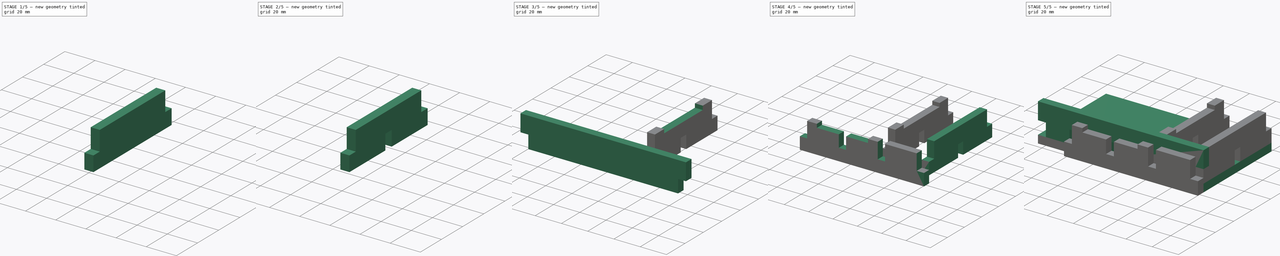
[diagram: build sequence overview — one tinted view per stage of 5, left to right]
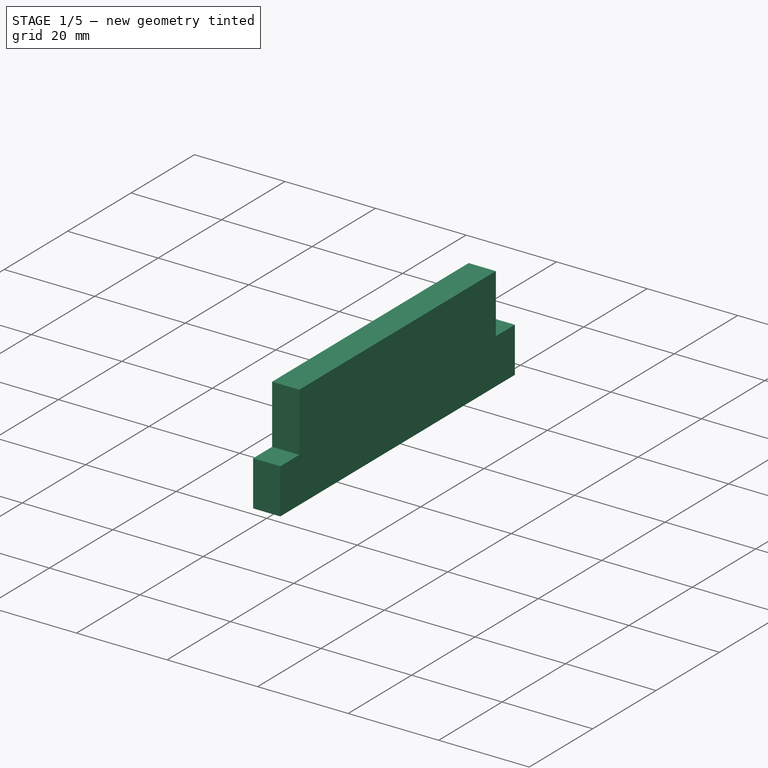
[diagram: stage 1 of 5 — iso view after this stage's code; geometry added in this stage tinted green]
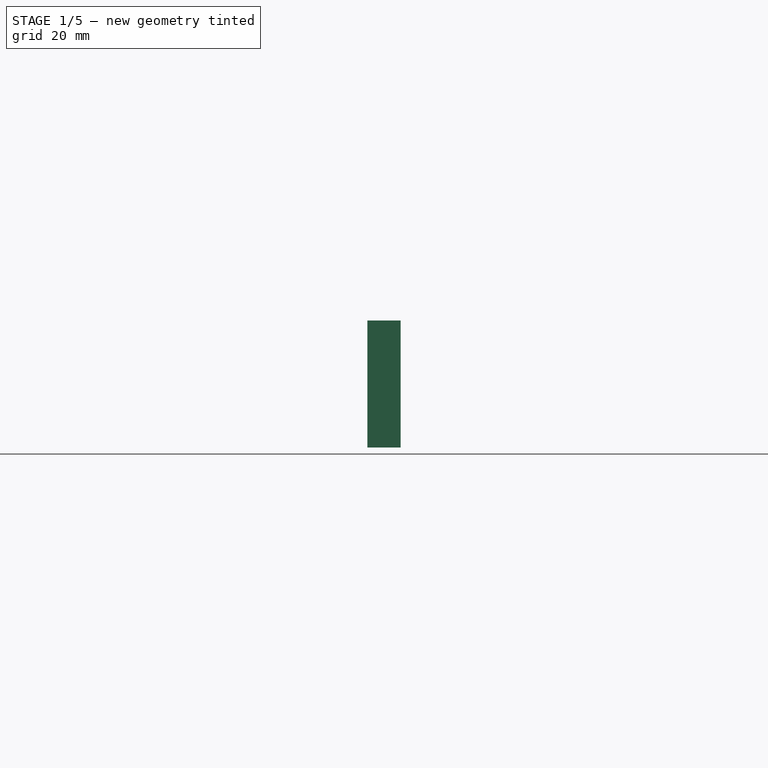
[diagram: stage 1 of 5 — front view after this stage's code; geometry added in this stage tinted green]
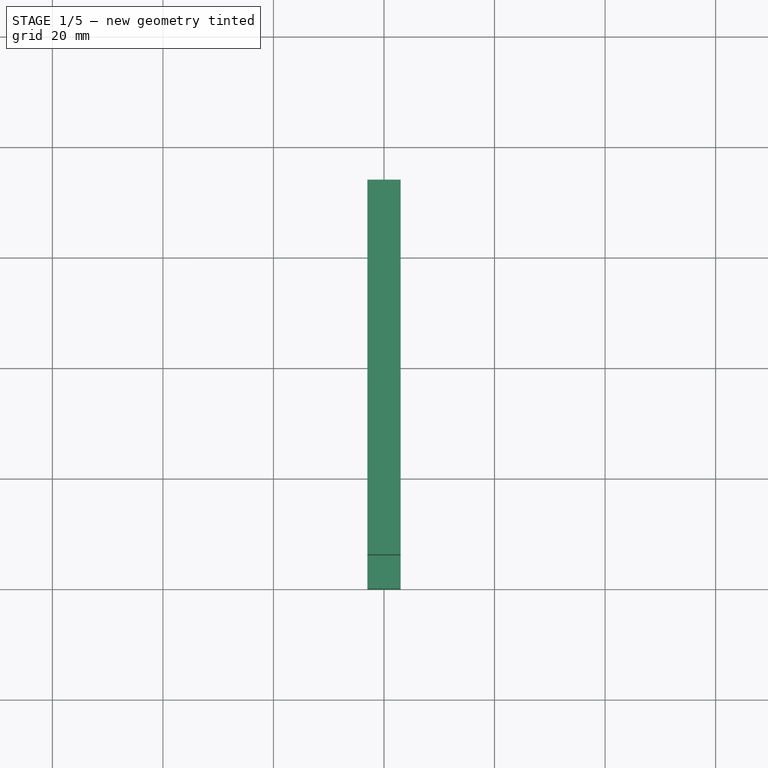
[diagram: stage 1 of 5 — top view after this stage's code; geometry added in this stage tinted green]
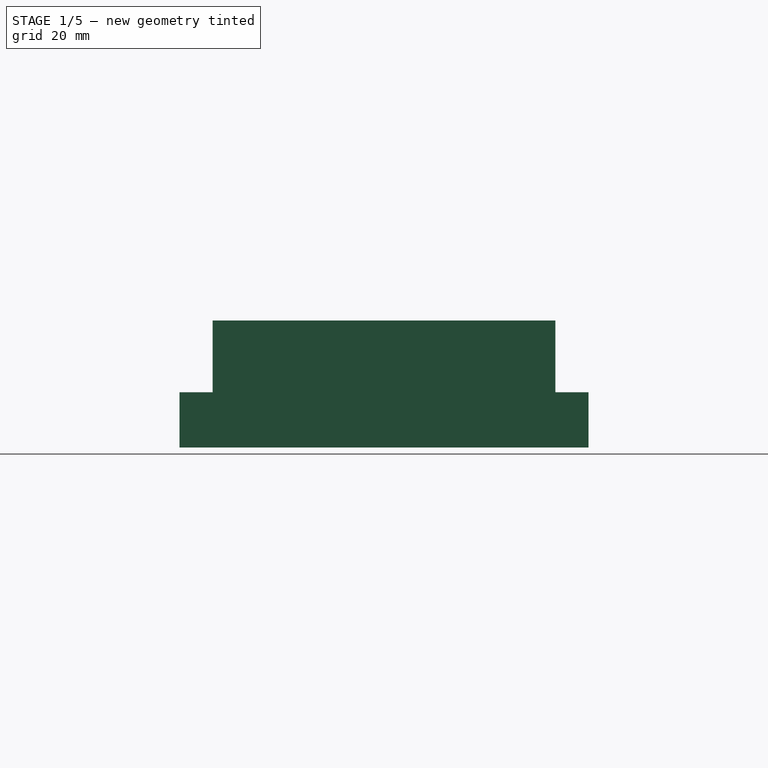
[diagram: stage 1 of 5 — right view after this stage's code; geometry added in this stage tinted green]
FCSTD DOCUMENT  (FreeCAD 0.18R16146 (Git))
Label: brass birmingham player caddy
License: All rights reserved
LicenseURL: http://en.wikipedia.org/wiki/All_rights_reserved
objects: TechDraw::DrawViewPart×13, Sketcher::SketchObject×10, PartDesign::Body×9, PartDesign::Pocket×6, PartDesign::FeatureBase×5, PartDesign::Pad×4, TechDraw::DrawSVGTemplate×3, TechDraw::DrawPage×3, App::DocumentObjectGroup×2, Spreadsheet::Sheet×1
note: 44 computed .brp shape members not serialized (recipe doc carries the construction recipe); baked Part::Feature solids carry a one-line shape summary decoded from their .brp

FEATURE [Sketcher::SketchObject] Sketch002
  MapMode = 5
  Placement = pos=(0,0,0) rot=(0.57735,0.57735,0.57735;2.0944rad)
  Support = -> [YZ_Plane003]
  expr: Constraints[8] = my_variables.lower_height - my_variables.foam_width
  sketch-geometry (4):
    g0: LineSegment StartX=-37 StartY=0 StartZ=0 EndX=37 EndY=0 EndZ=0
    g1: LineSegment StartX=37 StartY=0 StartZ=0 EndX=37 EndY=23 EndZ=0
    g2: LineSegment StartX=37 StartY=23 StartZ=0 EndX=-37 EndY=23 EndZ=0
    g3: LineSegment StartX=-37 StartY=23 StartZ=0 EndX=-37 EndY=0 EndZ=0
  constraints (11):
    c: Coincident(g0,g1)
    c: Coincident(g1,g2)
    c: Coincident(g2,g3)
    c: Coincident(g3,g0)
    c: Horizontal(g0)
    c: Horizontal(g2)
    c: Vertical(g1)
    c: Vertical(g3)
    c: Distance(g3) = 23
    c: Symmetric(g0,g0,g-1)
    c: Distance(g2) = 74
FEATURE [PartDesign::Pad] Pad002
  Length = 6
  Length2 = 100
  Placement = pos=(0,0,0) rot=(0.57735,0.57735,0.57735;2.0944rad)
  Profile = -> Sketch002
  Type = 0
  expr: Length = my_variables.foam_width
FEATURE [Sketcher::SketchObject] Sketch003
  MapMode = 5
  Placement = pos=(6,-1.3e-15,1.3e-15) rot=(0.57735,0.57735,0.57735;2.0944rad)
  Support = -> [Pad002]
  expr: Constraints[28] = my_variables.foam_width
  expr: Constraints[27] = my_variables.foam_width
  expr: Constraints[8] = Sketch002.Constraints[8]
  expr: Constraints[10] = Sketch002.Constraints[10]
  sketch-geometry (12):
    g0: LineSegment [constr] StartX=-37 StartY=0 StartZ=0 EndX=37 EndY=0 EndZ=0
    g1: LineSegment [constr] StartX=37 StartY=0 StartZ=0 EndX=37 EndY=23 EndZ=0
    g2: LineSegment [constr] StartX=37 StartY=23 StartZ=0 EndX=-37 EndY=23 EndZ=0
    g3: LineSegment [constr] StartX=-37 StartY=23 StartZ=0 EndX=-37 EndY=0 EndZ=0
    g4: LineSegment StartX=-37 StartY=23 StartZ=0 EndX=-31 EndY=23 EndZ=0
    g5: LineSegment StartX=-31 StartY=23 StartZ=0 EndX=-31 EndY=10 EndZ=0
    g6: LineSegment StartX=-31 StartY=10 StartZ=0 EndX=-37 EndY=10 EndZ=0
    g7: LineSegment StartX=-37 StartY=10 StartZ=0 EndX=-37 EndY=23 EndZ=0
    g8: LineSegment StartX=37 StartY=23 StartZ=0 EndX=31 EndY=23 EndZ=0
    g9: LineSegment StartX=31 StartY=23 StartZ=0 EndX=31 EndY=10 EndZ=0
    g10: LineSegment StartX=31 StartY=10 StartZ=0 EndX=37 EndY=10 EndZ=0
    g11: LineSegment StartX=37 StartY=10 StartZ=0 EndX=37 EndY=23 EndZ=0
  constraints (33):
    c: Coincident(g0,g1)
    c: Coincident(g1,g2)
    c: Coincident(g2,g3)
    c: Coincident(g3,g0)
    c: Horizontal(g0)
    c: Horizontal(g2)
    c: Vertical(g1)
    c: Vertical(g3)
    c: Distance(g3) = 23
    c: Symmetric(g0,g0,g-1)
    c: Distance(g2) = 74
    c: Coincident(g4,g5)
    c: Coincident(g5,g6)
    c: Coincident(g6,g7)
    c: Coincident(g7,g4)
    c: Horizontal(g4)
    c: Horizontal(g6)
    c: Vertical(g5)
    c: Vertical(g7)
    c: Coincident(g8,g9)
    c: Coincident(g9,g10)
    c: Coincident(g10,g11)
    c: Coincident(g11,g8)
    c: Horizontal(g8)
    c: Horizontal(g10)
    c: Vertical(g9)
    c: Vertical(g11)
    c: Distance(g6) = 6
    c: Distance(g10) = 6
    c: Distance(g6,g0) = 10
    c: Distance(g10,g0) = 10
    c: Coincident(g4,g2)
    c: Coincident(g8,g1)
FEATURE [PartDesign::Pocket] Pocket
  BaseFeature = -> Pad002
  Length = 5
  Length2 = 100
  Placement = pos=(0,0,0) rot=(0.57735,0.57735,0.57735;2.0944rad)
  Profile = -> Sketch003
  Type = 1
FEATURE [PartDesign::FeatureBase] Clone002
  BaseFeature = -> Body003
  Placement = pos=(-63,37,6) rot=(0,0,1;0rad)
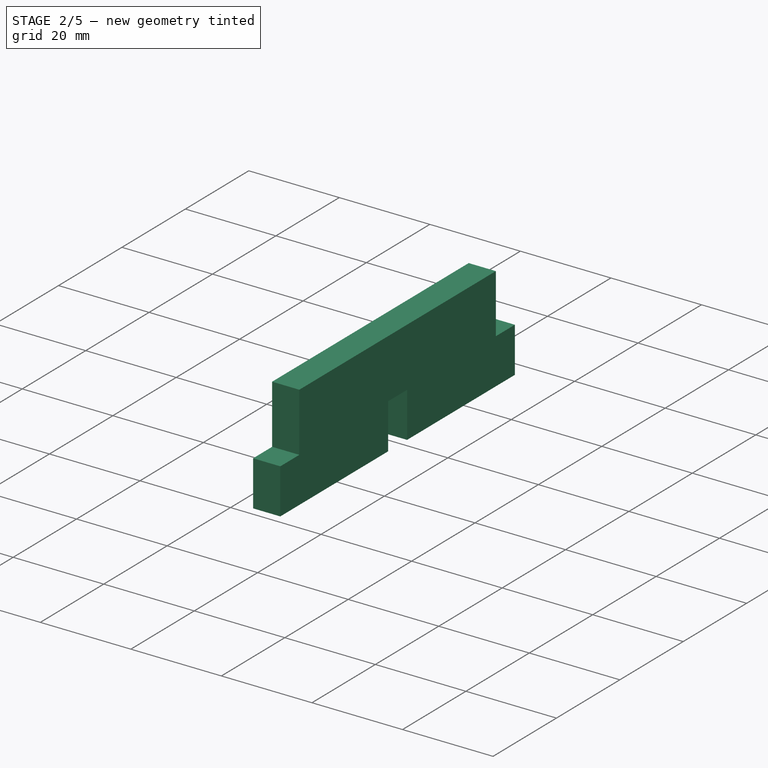
[diagram: stage 2 of 5 — iso view after this stage's code; geometry added in this stage tinted green]
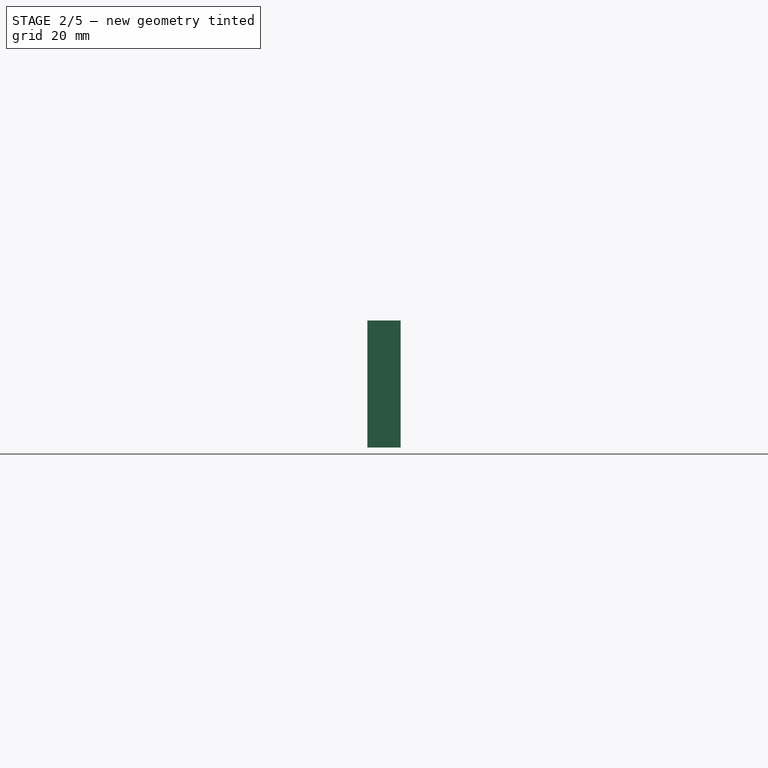
[diagram: stage 2 of 5 — front view after this stage's code; geometry added in this stage tinted green]
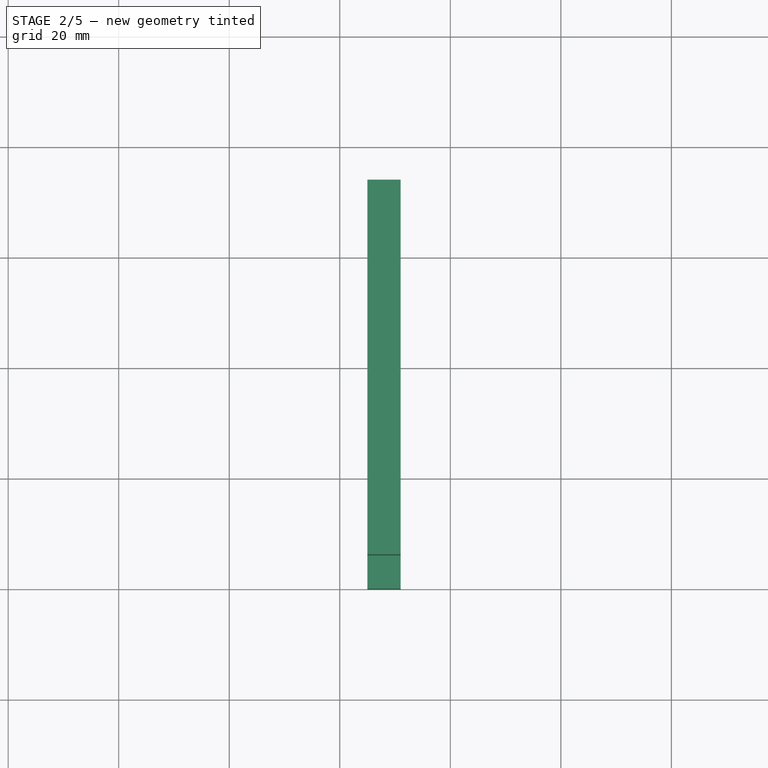
[diagram: stage 2 of 5 — top view after this stage's code; geometry added in this stage tinted green]
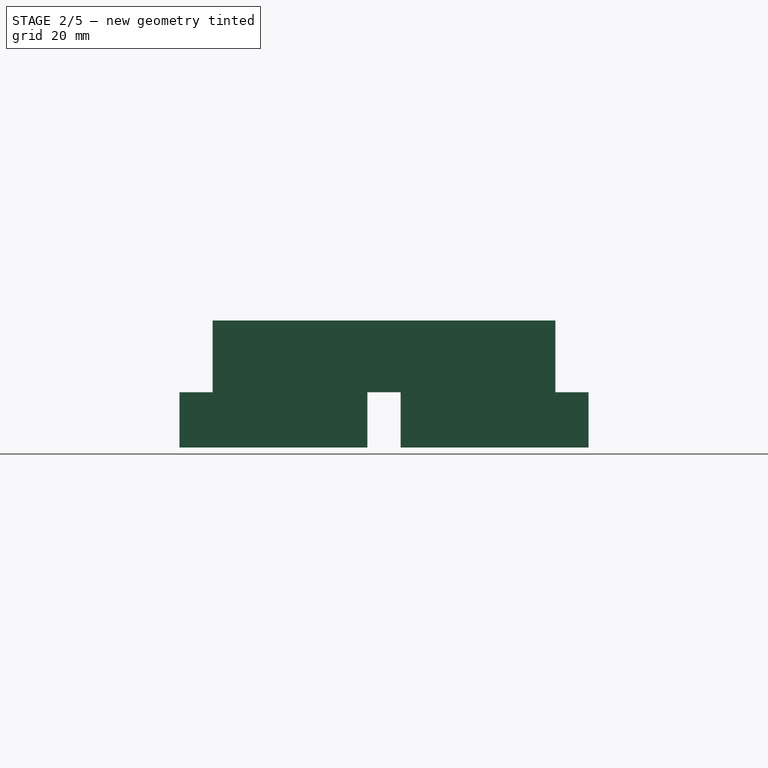
[diagram: stage 2 of 5 — right view after this stage's code; geometry added in this stage tinted green]
FEATURE [Sketcher::SketchObject] Sketch005
  MapMode = 5
  Placement = pos=(-57,37,6) rot=(0.57735,0.57735,0.57735;2.0944rad)
  Support = -> [Clone002]
  expr: Constraints[8] = my_variables.foam_width
  sketch-geometry (4):
    g0: LineSegment StartX=-3 StartY=10 StartZ=0 EndX=3 EndY=10 EndZ=0
    g1: LineSegment StartX=3 StartY=10 StartZ=0 EndX=3 EndY=0 EndZ=0
    g2: LineSegment StartX=3 StartY=0 StartZ=0 EndX=-3 EndY=0 EndZ=0
    g3: LineSegment StartX=-3 StartY=0 StartZ=0 EndX=-3 EndY=10 EndZ=0
  constraints (11):
    c: Coincident(g0,g1)
    c: Coincident(g1,g2)
    c: Coincident(g2,g3)
    c: Coincident(g3,g0)
    c: Horizontal(g0)
    c: Horizontal(g2)
    c: Vertical(g1)
    c: Vertical(g3)
    c: DistanceX(g0,g0) = 6
    c: Symmetric(g2,g2,g-1)
    c: DistanceY(g3,g3) = 10
FEATURE [PartDesign::Pocket] Pocket002
  BaseFeature = -> Clone002
  Length = 5
  Length2 = 100
  Placement = pos=(-63,37,6) rot=(0,0,1;0rad)
  Profile = -> Sketch005
  Type = 1
FEATURE [PartDesign::Body] Body002  label="side_long_clone"
  BaseFeature = -> Body001
  Group = -> [Clone]
  Origin = -> Origin002
  Placement = pos=(0,68,4e-15) rot=(0,0,1;0rad)
  Tip = -> Clone
FEATURE [PartDesign::FeatureBase] Clone003
  BaseFeature = -> Body006
  Placement = pos=(120,9.8e-15,7.1e-15) rot=(0,0,1;0rad)
FEATURE [PartDesign::Body] Body007  label="divider_clone 1"
  BaseFeature = -> Body006
  Group = -> [Clone003]
  Origin = -> Origin007
  Placement = pos=(-32,-9.8e-15,0) rot=(0,0,1;0rad)
  Tip = -> Clone003
FEATURE [PartDesign::FeatureBase] Clone004
  BaseFeature = -> Body007
  Placement = pos=(-32,-9.8e-15,0) rot=(0,0,1;0rad)
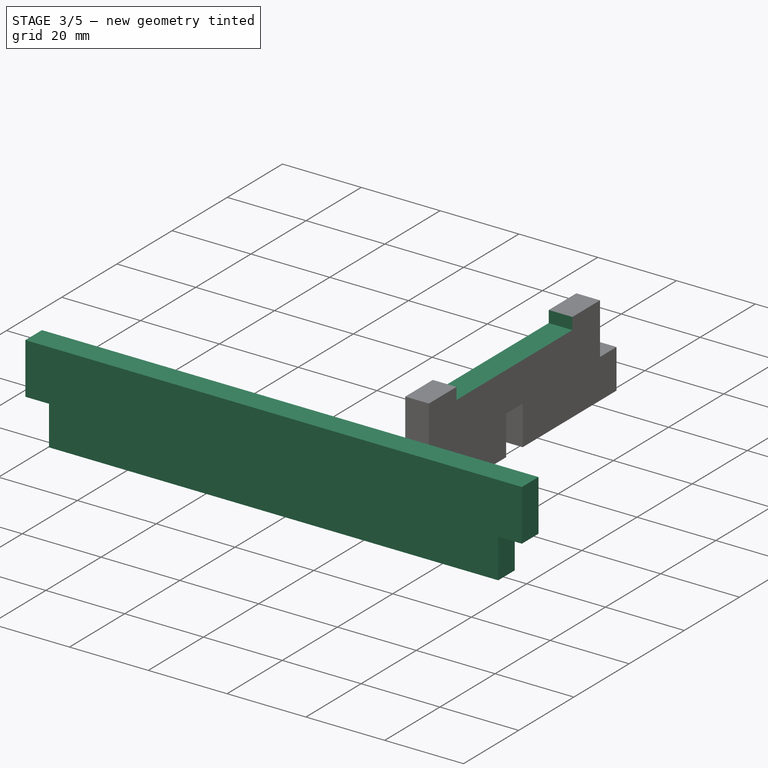
[diagram: stage 3 of 5 — iso view after this stage's code; geometry added in this stage tinted green]
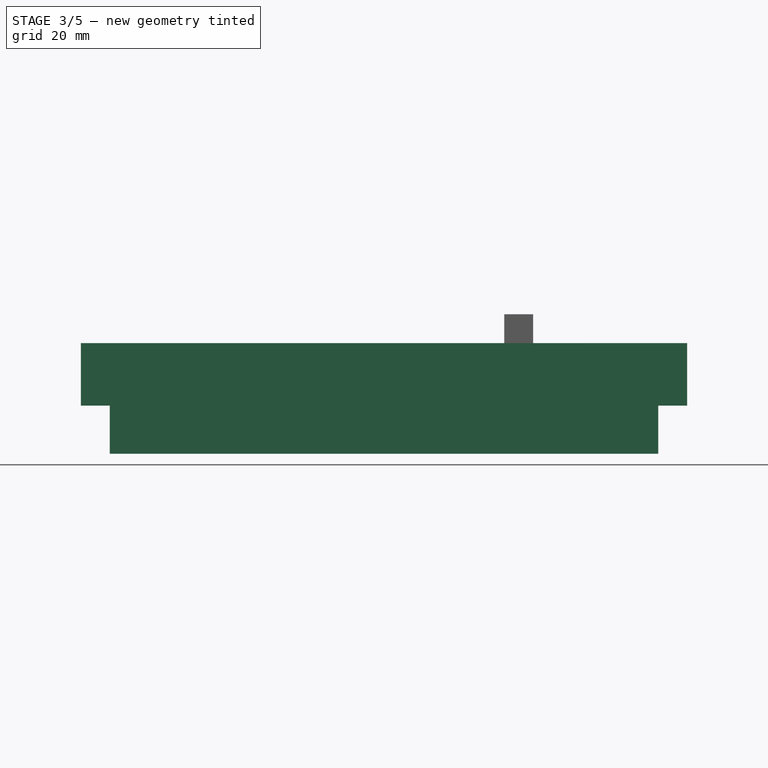
[diagram: stage 3 of 5 — front view after this stage's code; geometry added in this stage tinted green]
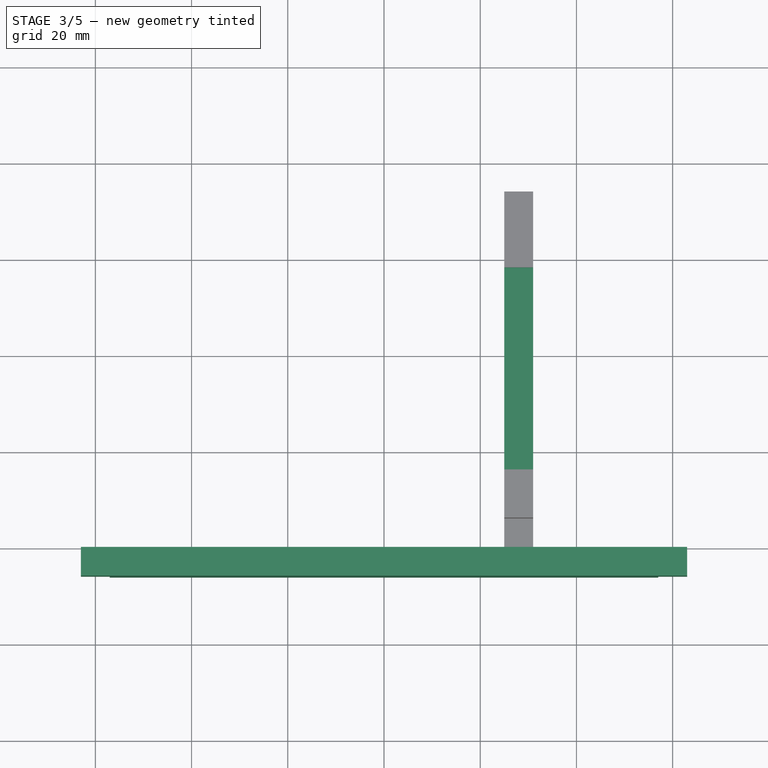
[diagram: stage 3 of 5 — top view after this stage's code; geometry added in this stage tinted green]
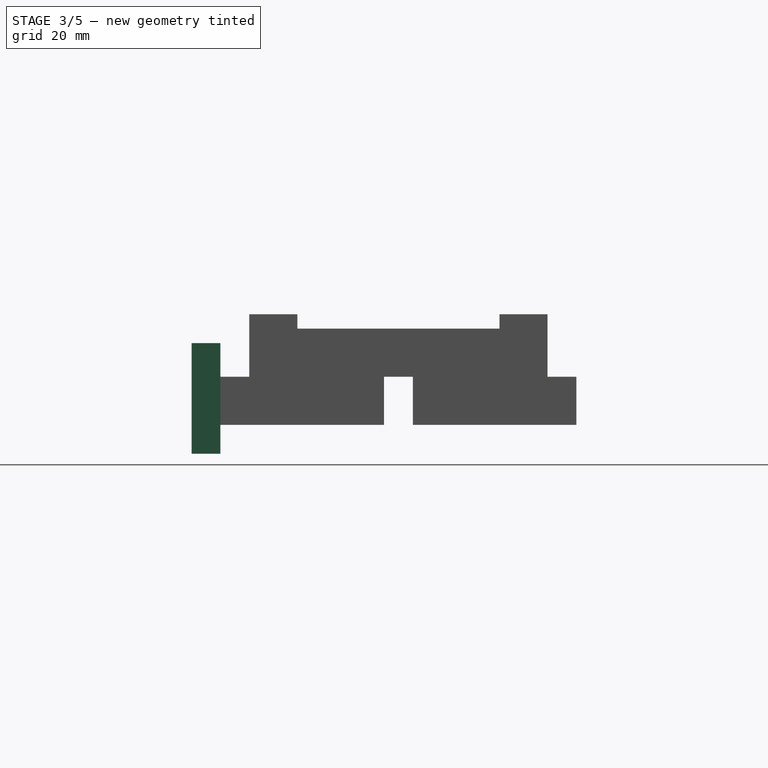
[diagram: stage 3 of 5 — right view after this stage's code; geometry added in this stage tinted green]
FEATURE [PartDesign::Body] Body  label="base"
  Group = -> [Sketch,Pad]
  Origin = -> Origin
  Tip = -> Pad
FEATURE [Sketcher::SketchObject] Sketch001
  MapMode = 5
  Placement = pos=(0,0,0) rot=(1,0,0;1.5708rad)
  Support = -> [XZ_Plane001]
  expr: Constraints[9] = 29mm - my_variables.foam_width
  sketch-geometry (4):
    g0: LineSegment StartX=-63 StartY=23 StartZ=0 EndX=63 EndY=23 EndZ=0
    g1: LineSegment StartX=63 StartY=23 StartZ=0 EndX=63 EndY=0 EndZ=0
    g2: LineSegment StartX=63 StartY=0 StartZ=0 EndX=-63 EndY=0 EndZ=0
    g3: LineSegment StartX=-63 StartY=0 StartZ=0 EndX=-63 EndY=23 EndZ=0
  constraints (11):
    c: Coincident(g0,g1)
    c: Coincident(g1,g2)
    c: Coincident(g2,g3)
    c: Coincident(g3,g0)
    c: Horizontal(g0)
    c: Horizontal(g2)
    c: Vertical(g1)
    c: Vertical(g3)
    c: Distance(g2) = 126
    c: Distance(g3) = 23
    c: Symmetric(g2,g2,g-1)
FEATURE [PartDesign::Pad] Pad001
  Length = 6
  Length2 = 100
  Placement = pos=(0,0,0) rot=(1,0,0;1.5708rad)
  Profile = -> Sketch001
  Type = 0
  expr: Length = my_variables.foam_width
FEATURE [PartDesign::Body] Body003  label="side_small"
  Group = -> [Sketch002,Pad002,Sketch003,Pocket]
  Origin = -> Origin003
  Placement = pos=(-63,37,6) rot=(0,0,1;0rad)
  Tip = -> Pocket
FEATURE [Sketcher::SketchObject] Sketch004
  MapMode = 5
  Placement = pos=(0,-6,1.3e-15) rot=(1,0,0;1.5708rad)
  Support = -> [Pad001]
  expr: Constraints[31] = my_variables.foam_width
  expr: Constraints[19] = Sketch001.Constraints[9]
  expr: Constraints[18] = Sketch001.Constraints[8]
  expr: Constraints[9] = my_variables.foam_width
  sketch-geometry (12):
    g0: LineSegment StartX=57 StartY=10 StartZ=0 EndX=63 EndY=10 EndZ=0
    g1: LineSegment StartX=63 StartY=10 StartZ=0 EndX=63 EndY=0 EndZ=0
    g2: LineSegment StartX=63 StartY=0 StartZ=0 EndX=57 EndY=0 EndZ=0
    g3: LineSegment StartX=57 StartY=0 StartZ=0 EndX=57 EndY=10 EndZ=0
    g4: LineSegment [constr] StartX=-63 StartY=23 StartZ=0 EndX=63 EndY=23 EndZ=0
    g5: LineSegment [constr] StartX=63 StartY=23 StartZ=0 EndX=63 EndY=0 EndZ=0
    g6: LineSegment [constr] StartX=63 StartY=0 StartZ=0 EndX=-63 EndY=0 EndZ=0
    g7: LineSegment [constr] StartX=-63 StartY=0 StartZ=0 EndX=-63 EndY=23 EndZ=0
    g8: LineSegment StartX=-57 StartY=10 StartZ=0 EndX=-63 EndY=10 EndZ=0
    g9: LineSegment StartX=-63 StartY=10 StartZ=0 EndX=-63 EndY=0 EndZ=0
    g10: LineSegment StartX=-63 StartY=0 StartZ=0 EndX=-57 EndY=0 EndZ=0
    g11: LineSegment StartX=-57 StartY=0 StartZ=0 EndX=-57 EndY=10 EndZ=0
  constraints (33):
    c: Coincident(g0,g1)
    c: Coincident(g1,g2)
    c: Coincident(g2,g3)
    c: Coincident(g3,g0)
    c: Horizontal(g0)
    c: Horizontal(g2)
    c: Vertical(g1)
    c: Vertical(g3)
    c: DistanceY(g1,g1) = 10
    c: Distance(g0) = 6
    c: Coincident(g4,g5)
    c: Coincident(g5,g6)
    c: Coincident(g6,g7)
    c: Coincident(g7,g4)
    c: Horizontal(g4)
    c: Horizontal(g6)
    c: Vertical(g5)
    c: Vertical(g7)
    c: Distance(g6) = 126
    c: Distance(g7) = 23
    c: Symmetric(g6,g6,g-1)
    c: Coincident(g1,g5)
    c: Coincident(g8,g9)
    c: Coincident(g9,g10)
    c: Coincident(g10,g11)
    c: Coincident(g11,g8)
    c: Horizontal(g8)
    c: Horizontal(g10)
    c: Vertical(g9)
    c: Vertical(g11)
    c: Coincident(g9,g6)
    c: Distance(g8) = 6
    c: DistanceY(g11,g11) = 10
FEATURE [PartDesign::Pocket] Pocket001
  BaseFeature = -> Pad001
  Length = 5
  Length2 = 100
  Placement = pos=(0,0,0) rot=(1,0,0;1.5708rad)
  Profile = -> Sketch004
  Type = 1
FEATURE [PartDesign::Body] Body010  label="divider_long - with holder"
  Group = -> [Sketch007,Pad003,Sketch008,Pocket004]
  Origin = -> Origin010
  Placement = pos=(-7.1e-15,40,6) rot=(0,0,1;0rad)
  Tip = -> Pocket004
FEATURE [App::DocumentObjectGroup] Group  label="parts"
  Group = -> [Body,Body001,Body003,Body010]
FEATURE [Sketcher::SketchObject] Sketch009
  ExternalGeometry = -> [Clone004]
  MapMode = 5
  Placement = pos=(25,-4.17e-14,0) rot=(-0.57735,0.57735,0.57735;4.18879rad)
  Support = -> [Clone004]
  sketch-geometry (5):
    g0: GeomPoint X=-37 Y=29 Z=0
    g1: LineSegment StartX=-58 StartY=29 StartZ=0 EndX=-16 EndY=29 EndZ=0
    g2: LineSegment StartX=-16 StartY=29 StartZ=0 EndX=-16 EndY=26 EndZ=0
    g3: LineSegment StartX=-16 StartY=26 StartZ=0 EndX=-58 EndY=26 EndZ=0
    g4: LineSegment StartX=-58 StartY=26 StartZ=0 EndX=-58 EndY=29 EndZ=0
  constraints (12):
    c: Symmetric(g-3,g-3,g0)
    c: Coincident(g1,g2)
    c: Coincident(g2,g3)
    c: Coincident(g3,g4)
    c: Coincident(g4,g1)
    c: Horizontal(g1)
    c: Horizontal(g3)
    c: Vertical(g2)
    c: Vertical(g4)
    c: Symmetric(g1,g1,g0)
    c: Distance(g1) = 42
    c: DistanceY(g4,g4) = 3
FEATURE [PartDesign::Pocket] Pocket005
  BaseFeature = -> Clone004
  Length = 5
  Length2 = 100
  Placement = pos=(-32,-9.8e-15,0) rot=(0,0,1;0rad)
  Profile = -> Sketch009
  Type = 1
FEATURE [PartDesign::Body] Body008  label="divider_clone 2 - with holder"
  BaseFeature = -> Body007
  Group = -> [Clone004,Sketch009,Pocket005]
  Origin = -> Origin008
  Placement = pos=(-32,0,0) rot=(0,0,1;0rad)
  Tip = -> Pocket005
FEATURE [App::DocumentObjectGroup] Group001  label="clones"
  Group = -> [Body002,Body006,Body007,Body008,Body009]
FEATURE [TechDraw::DrawSVGTemplate] Template
  EditableTexts = Designed_by_Name=Gerard Ninnes; Drawing_number=1; FC-Date=28 Sep 2020; FC-SC=1:1; FC-SH=1/2; FC-Title=Brass: Birmingham; Subtitle=Player caddy; Weight=N/A
  Height = 210
  Orientation = 1
  Width = 297
FEATURE [TechDraw::DrawSVGTemplate] Template002
  Height = 210
  Orientation = 1
  Width = 297
FEATURE [TechDraw::DrawViewPart] View011
  CoarseView = false
  Direction = (-0.577,0.577,0.577)
  Focus = 100
  HardHidden = false
  IsoCount = 0
  IsoHidden = false
  IsoVisible = false
  LockPosition = false
  Perspective = false
  Rotation = 0
  ScaleType = 0
  SeamHidden = false
  SeamVisible = false
  SmoothHidden = false
  SmoothVisible = false
  Source = -> [Body009,Body008,Body007,Body006,Body010]
  X = 74.8313
  Y = 138.137
FEATURE [TechDraw::DrawViewPart] View012
  CoarseView = false
  Direction = (-0.577,-0.577,0.577)
  Focus = 100
  HardHidden = false
  IsoCount = 0
  IsoHidden = false
  IsoVisible = false
  LockPosition = false
  Perspective = false
  Rotation = 0
  Scale = 1.5
  ScaleType = 0
  SeamHidden = false
  SeamVisible = false
  SmoothHidden = false
  SmoothVisible = false
  Source = -> [Body,Body007,Body008,Body002,Body003,Body006,Body001,Body009,Body010,Group001]
  X = 144.17
  Y = 111.765
FEATURE [TechDraw::DrawPage] Page002  label="iso"
  KeepUpdated = true
  ProjectionType = 0
  Scale = 1.5
  Template = -> Template002
  Views = -> [View012]
FEATURE [TechDraw::DrawViewPart] View013
  CoarseView = false
  Direction = (-0.572,0.578,0.582)
  Focus = 100
  HardHidden = false
  IsoCount = 0
  IsoHidden = false
  IsoVisible = false
  LockPosition = false
  Perspective = false
  Rotation = 0
  ScaleType = 0
  SeamHidden = false
  SeamVisible = false
  SmoothHidden = false
  SmoothVisible = false
  Source = -> [Body001,Body003,Body010,Body002,Body006,Body007,Body008,Body009]
  X = 215.87
  Y = 135.399
FEATURE [TechDraw::DrawPage] Page  label="steps"
  KeepUpdated = true
  ProjectionType = 0
  Template = -> Template
  Views = -> [View011,View013]
FEATURE [TechDraw::DrawSVGTemplate] Template005
  Height = 210
  Orientation = 1
  Width = 297
FEATURE [TechDraw::DrawViewPart] View
  CoarseView = false
  Direction = (0,0,1)
  Focus = 100
  HardHidden = false
  IsoCount = 0
  IsoHidden = false
  IsoVisible = false
  LockPosition = false
  Perspective = false
  Rotation = 0
  ScaleType = 0
  SeamHidden = false
  SeamVisible = false
  SmoothHidden = false
  SmoothVisible = false
  Source = -> [Body]
  X = 67.8557
  Y = 168.325
FEATURE [TechDraw::DrawViewPart] View014
  CoarseView = false
  Direction = (0,-1,0)
  Focus = 100
  HardHidden = false
  IsoCount = 0
  IsoHidden = false
  IsoVisible = false
  LockPosition = false
  Perspective = false
  Rotation = 0
  ScaleType = 0
  SeamHidden = false
  SeamVisible = false
  SmoothHidden = false
  SmoothVisible = false
  Source = -> [Body001]
  X = 68.1263
  Y = 107.977
FEATURE [TechDraw::DrawViewPart] View015
  CoarseView = false
  Direction = (0,-1,0)
  Focus = 100
  HardHidden = false
  IsoCount = 0
  IsoHidden = false
  IsoVisible = false
  LockPosition = false
  Perspective = false
  Rotation = 0
  ScaleType = 0
  SeamHidden = false
  SeamVisible = false
  SmoothHidden = false
  SmoothVisible = false
  Source = -> [Body002]
  X = 197.753
  Y = 107.977
FEATURE [TechDraw::DrawViewPart] View016
  CoarseView = false
  Direction = (0,-1,0)
  Focus = 100
  HardHidden = false
  IsoCount = 0
  IsoHidden = false
  IsoVisible = false
  LockPosition = false
  Perspective = false
  Rotation = 0
  ScaleType = 0
  SeamHidden = false
  SeamVisible = false
  SmoothHidden = false
  SmoothVisible = false
  Source = -> [Body010]
  X = 218.994
  Y = 28.0374
FEATURE [TechDraw::DrawViewPart] View017
  CoarseView = false
  Direction = (1,0,0)
  Focus = 100
  HardHidden = false
  IsoCount = 0
  IsoHidden = false
  IsoVisible = false
  LockPosition = false
  Perspective = false
  Rotation = 0
  ScaleType = 0
  SeamHidden = false
  SeamVisible = false
  SmoothHidden = false
  SmoothVisible = false
  Source = -> [Body003]
  X = 43.2294
  Y = 71.9845
FEATURE [TechDraw::DrawViewPart] View018
  CoarseView = false
  Direction = (1,0,0)
  Focus = 100
  HardHidden = false
  IsoCount = 0
  IsoHidden = false
  IsoVisible = false
  LockPosition = false
  Perspective = false
  Rotation = 0
  ScaleType = 0
  SeamHidden = false
  SeamVisible = false
  SmoothHidden = false
  SmoothVisible = false
  Source = -> [Body006]
  X = 122.521
  Y = 71.7139
FEATURE [TechDraw::DrawViewPart] View019
  CoarseView = false
  Direction = (1,0,0)
  Focus = 100
  HardHidden = false
  IsoCount = 0
  IsoHidden = false
  IsoVisible = false
  LockPosition = false
  Perspective = false
  Rotation = 0
  ScaleType = 0
  SeamHidden = false
  SeamVisible = false
  SmoothHidden = false
  SmoothVisible = false
  Source = -> [Body007]
  X = 203.165
  Y = 71.9845
FEATURE [TechDraw::DrawViewPart] View020
  CoarseView = false
  Direction = (1,0,0)
  Focus = 100
  HardHidden = false
  IsoCount = 0
  IsoHidden = false
  IsoVisible = false
  LockPosition = false
  Perspective = false
  Rotation = 0
  ScaleType = 0
  SeamHidden = false
  SeamVisible = false
  SmoothHidden = false
  SmoothVisible = false
  Source = -> [Body008]
  X = 42.4175
  Y = 27.8737
FEATURE [TechDraw::DrawViewPart] View021
  CoarseView = false
  Direction = (1,0,0)
  Focus = 100
  HardHidden = false
  IsoCount = 0
  IsoHidden = false
  IsoVisible = false
  LockPosition = false
  Perspective = false
  Rotation = 0
  ScaleType = 0
  SeamHidden = false
  SeamVisible = false
  SmoothHidden = false
  SmoothVisible = false
  Source = -> [Body009]
  X = 122.25
  Y = 28.1443
FEATURE [TechDraw::DrawViewPart] View022
  CoarseView = false
  Direction = (0,0,1)
  Focus = 100
  HardHidden = false
  IsoCount = 0
  IsoHidden = false
  IsoVisible = false
  LockPosition = false
  Perspective = false
  Rotation = 0
  ScaleType = 0
  SeamHidden = false
  SeamVisible = false
  SmoothHidden = false
  SmoothVisible = false
  Source = -> [Body,Body008,Body007,Body006,Body003,Body002,Body001,Body009,Body010,Group001]
  X = 205.392
  Y = 167.714
FEATURE [TechDraw::DrawPage] Page005  label="Parts"
  KeepUpdated = true
  ProjectionType = 0
  Template = -> Template005
  Views = -> [View,View014,View015,View016,View017,View018,View019,View020,View021,View022]
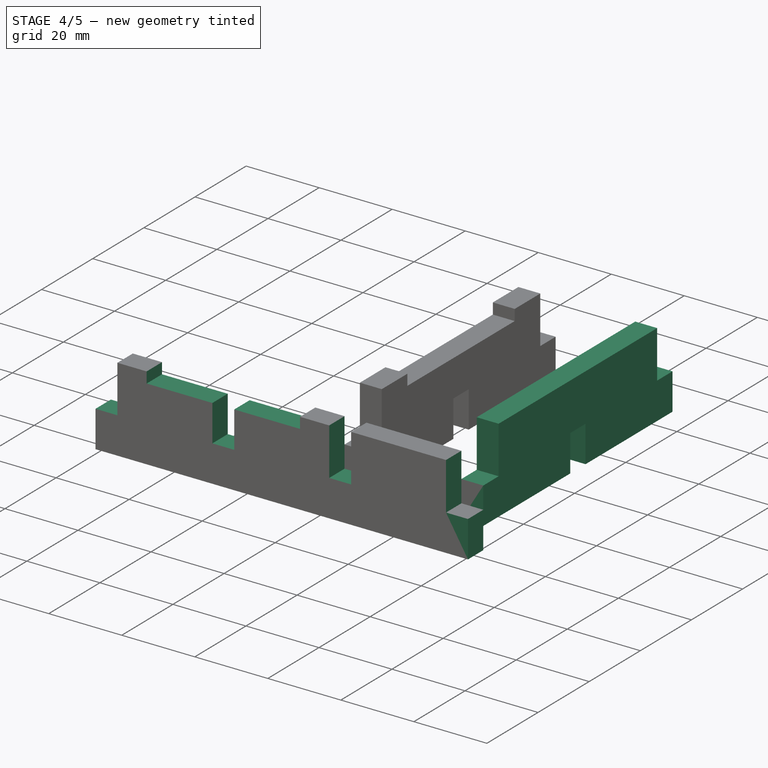
[diagram: stage 4 of 5 — iso view after this stage's code; geometry added in this stage tinted green]
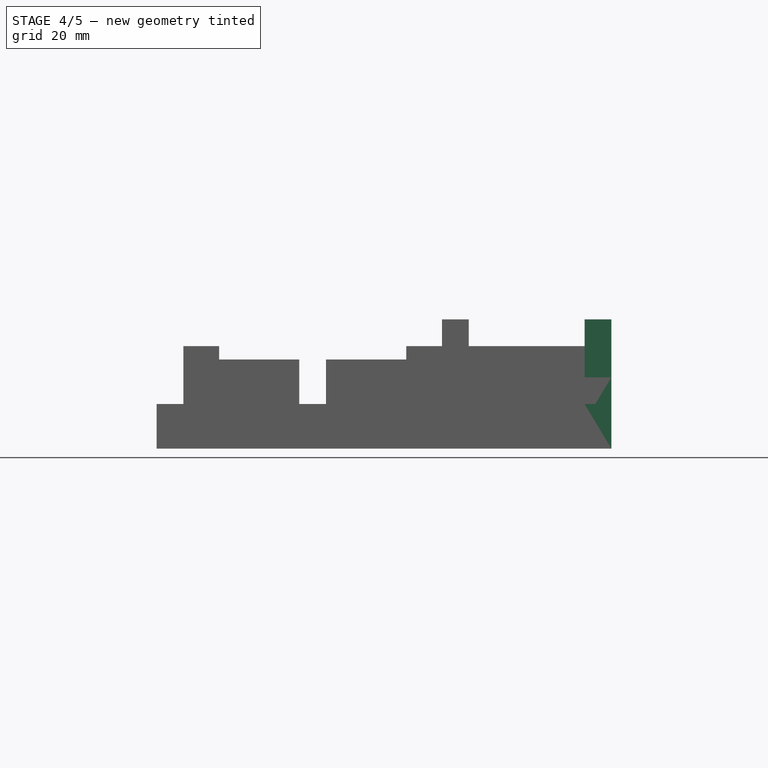
[diagram: stage 4 of 5 — front view after this stage's code; geometry added in this stage tinted green]
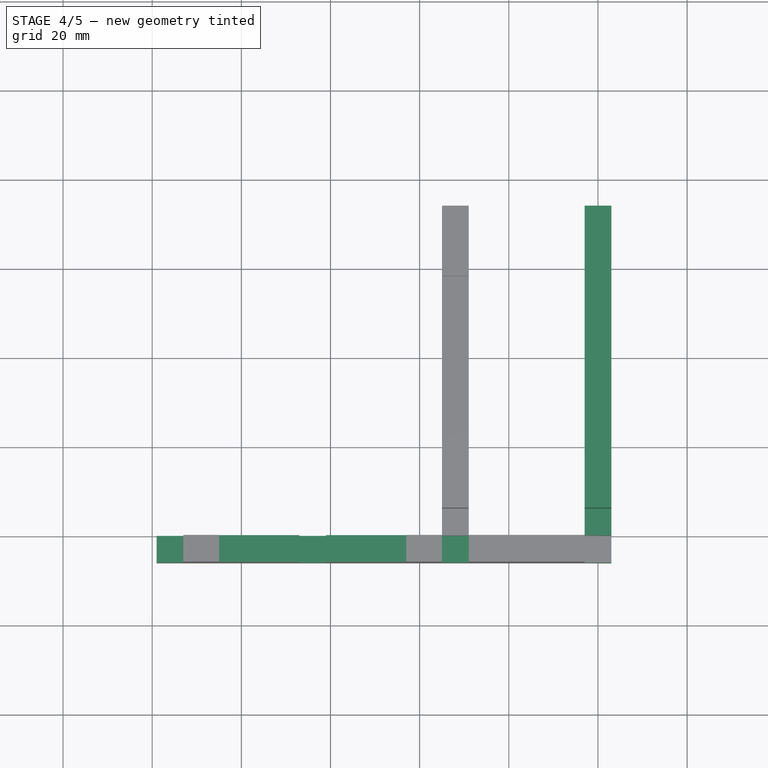
[diagram: stage 4 of 5 — top view after this stage's code; geometry added in this stage tinted green]
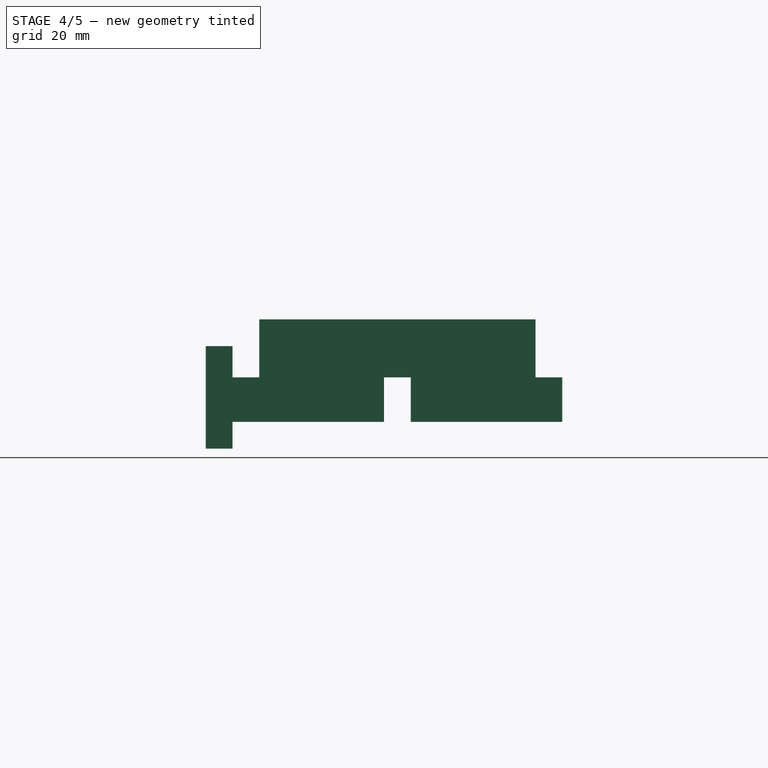
[diagram: stage 4 of 5 — right view after this stage's code; geometry added in this stage tinted green]
FEATURE [PartDesign::FeatureBase] Clone005
  BaseFeature = -> Body006
  Placement = pos=(120,9.8e-15,7.1e-15) rot=(0,0,1;0rad)
FEATURE [PartDesign::Body] Body009  label="divider_clone 3"
  BaseFeature = -> Body006
  Group = -> [Clone005]
  Origin = -> Origin009
  Placement = pos=(-96,-9.8e-15,0) rot=(0,0,1;0rad)
  Tip = -> Clone005
FEATURE [Sketcher::SketchObject] Sketch007
  MapMode = 5
  Placement = pos=(0,0,0) rot=(1,0,0;1.5708rad)
  Support = -> [XZ_Plane010]
  expr: Constraints[54] = Sketch006.Constraints[54]
  expr: Constraints[53] = Sketch006.Constraints[53]
  expr: Constraints[24] = Sketch006.Constraints[24]
  expr: Constraints[20] = Sketch006.Constraints[20]
  expr: Constraints[23] = Sketch006.Constraints[23]
  expr: Constraints[19] = Sketch006.Constraints[19]
  expr: Constraints[18] = Sketch006.Constraints[18]
  expr: Constraints[12] = Sketch006.Constraints[12]
  expr: Constraints[17] = Sketch006.Constraints[17]
  expr: Constraints[9] = Sketch006.Constraints[9]
  expr: Constraints[52] = Sketch006.Constraints[52]
  expr: Constraints[8] = Sketch006.Constraints[8]
  sketch-geometry (27):
    g0: LineSegment [constr] StartX=-63 StartY=23 StartZ=0 EndX=63 EndY=23 EndZ=0
    g1: LineSegment [constr] StartX=63 StartY=23 StartZ=0 EndX=63 EndY=0 EndZ=0
    g2: LineSegment [constr] StartX=63 StartY=0 StartZ=0 EndX=-63 EndY=0 EndZ=0
    g3: LineSegment [constr] StartX=-63 StartY=0 StartZ=0 EndX=-63 EndY=23 EndZ=0
    g4: GeomPoint X=-57 Y=0 Z=0
    g5: GeomPoint X=-39 Y=0 Z=0
    g6: GeomPoint X=-33 Y=0 Z=0
    g7: GeomPoint X=-7 Y=0 Z=0
    g8: GeomPoint X=-1 Y=0 Z=0
    g9: GeomPoint X=25 Y=0 Z=0
    g10: GeomPoint X=31 Y=0 Z=0
    g11: LineSegment [constr] StartX=-39 StartY=0 StartZ=0 EndX=-33 EndY=0 EndZ=0
    g12: LineSegment [constr] StartX=-33 StartY=0 StartZ=0 EndX=-33 EndY=10 EndZ=0
    g13: LineSegment [constr] StartX=-33 StartY=10 StartZ=0 EndX=-39 EndY=10 EndZ=0
    g14: LineSegment [constr] StartX=-39 StartY=10 StartZ=0 EndX=-39 EndY=0 EndZ=0
    g15: LineSegment [constr] StartX=-7 StartY=0 StartZ=0 EndX=-1 EndY=0 EndZ=0
    g16: LineSegment [constr] StartX=-1 StartY=0 StartZ=0 EndX=-1 EndY=10 EndZ=0
    g17: LineSegment [constr] StartX=-1 StartY=10 StartZ=0 EndX=-7 EndY=10 EndZ=0
    g18: LineSegment [constr] StartX=-7 StartY=10 StartZ=0 EndX=-7 EndY=0 EndZ=0
    g19: LineSegment [constr] StartX=25 StartY=0 StartZ=0 EndX=31 EndY=0 EndZ=0
    g20: LineSegment [constr] StartX=31 StartY=0 StartZ=0 EndX=31 EndY=10 EndZ=0
    g21: LineSegment [constr] StartX=31 StartY=10 StartZ=0 EndX=25 EndY=10 EndZ=0
    g22: LineSegment [constr] StartX=25 StartY=10 StartZ=0 EndX=25 EndY=0 EndZ=0
    g23: LineSegment StartX=63 StartY=23 StartZ=0 EndX=-39 EndY=23 EndZ=0
    g24: LineSegment StartX=-39 StartY=23 StartZ=0 EndX=-39 EndY=0 EndZ=0
    g25: LineSegment StartX=-39 StartY=0 StartZ=0 EndX=63 EndY=0 EndZ=0
    g26: LineSegment StartX=63 StartY=0 StartZ=0 EndX=63 EndY=23 EndZ=0
  constraints (65):
    c: Coincident(g0,g1)
    c: Coincident(g1,g2)
    c: Coincident(g2,g3)
    c: Coincident(g3,g0)
    c: Horizontal(g0)
    c: Horizontal(g2)
    c: Vertical(g1)
    c: Vertical(g3)
    c: Distance(g2) = 126
    c: Distance(g3) = 23
    c: Symmetric(g2,g2,g-1)
    c: PointOnObject(g4,g2)
    c: DistanceX(g2,g4) = 6
    c: PointOnObject(g5,g2)
    c: PointOnObject(g6,g2)
    c: PointOnObject(g7,g2)
    c: PointOnObject(g8,g2)
    c: DistanceX(g4,g5) = 18
    c: DistanceX(g5,g6) = 6
    c: DistanceX(g6,g7) = 26
    c: DistanceX(g7,g8) = 6
    c: PointOnObject(g9,g2)
    c: PointOnObject(g10,g2)
    c: DistanceX(g8,g9) = 26
    c: DistanceX(g9,g10) = 6
    c: Coincident(g11,g12)
    c: Coincident(g12,g13)
    c: Coincident(g13,g14)
    c: Coincident(g14,g11)
    c: Horizontal(g13)
    c: Vertical(g12)
    c: Vertical(g14)
    c: Coincident(g11,g5)
    c: Coincident(g15,g16)
    c: Coincident(g16,g17)
    c: Coincident(g17,g18)
    c: Coincident(g18,g15)
    c: Horizontal(g17)
    c: Vertical(g16)
    c: Vertical(g18)
    c: Coincident(g15,g7)
    c: Coincident(g19,g20)
    c: Coincident(g20,g21)
    c: Coincident(g21,g22)
    c: Coincident(g22,g19)
    c: Horizontal(g21)
    c: Vertical(g20)
    c: Vertical(g22)
    c: Coincident(g19,g9)
    c: Coincident(g6,g11)
    c: Coincident(g8,g15)
    c: Coincident(g10,g19)
    c: DistanceY(g14,g14) = 10
    c: DistanceY(g18,g18) = 10
    c: DistanceY(g22,g22) = 10
    c: Coincident(g23,g24)
    c: Coincident(g24,g25)
    c: Coincident(g25,g26)
    c: Coincident(g26,g23)
    c: Horizontal(g23)
    c: Horizontal(g25)
    c: Vertical(g24)
    c: Vertical(g26)
    c: Coincident(g23,g0)
    c: Coincident(g24,g5)
FEATURE [PartDesign::Pad] Pad003
  Length = 6
  Length2 = 100
  Placement = pos=(0,0,0) rot=(1,0,0;1.5708rad)
  Profile = -> Sketch007
  Type = 0
  expr: Length = my_variables.foam_width
FEATURE [Sketcher::SketchObject] Sketch008
  MapMode = 5
  Placement = pos=(0,-6,1.3e-15) rot=(1,0,0;1.5708rad)
  Support = -> [Pad003]
  expr: Constraints[54] = Sketch006.Constraints[54]
  expr: Constraints[53] = Sketch006.Constraints[53]
  expr: Constraints[84] = my_variables.foam_width
  expr: Constraints[20] = Sketch006.Constraints[20]
  expr: Constraints[24] = Sketch006.Constraints[24]
  expr: Constraints[23] = Sketch006.Constraints[23]
  expr: Constraints[19] = Sketch006.Constraints[19]
  expr: Constraints[18] = Sketch006.Constraints[18]
  expr: Constraints[12] = Sketch006.Constraints[12]
  expr: Constraints[17] = Sketch006.Constraints[17]
  expr: Constraints[9] = Sketch006.Constraints[9]
  expr: Constraints[52] = Sketch006.Constraints[52]
  expr: Constraints[8] = Sketch006.Constraints[8]
  sketch-geometry (45):
    g0: LineSegment [constr] StartX=-63 StartY=23 StartZ=0 EndX=63 EndY=23 EndZ=0
    g1: LineSegment [constr] StartX=63 StartY=23 StartZ=0 EndX=63 EndY=0 EndZ=0
    g2: LineSegment [constr] StartX=63 StartY=0 StartZ=0 EndX=-63 EndY=0 EndZ=0
    g3: LineSegment [constr] StartX=-63 StartY=0 StartZ=0 EndX=-63 EndY=23 EndZ=0
    g4: GeomPoint X=-57 Y=0 Z=0
    g5: GeomPoint X=-39 Y=0 Z=0
    g6: GeomPoint X=-33 Y=0 Z=0
    g7: GeomPoint X=-7 Y=0 Z=0
    g8: GeomPoint X=-1 Y=0 Z=0
    g9: GeomPoint X=25 Y=0 Z=0
    g10: GeomPoint X=31 Y=0 Z=0
    g11: LineSegment [constr] StartX=-39 StartY=0 StartZ=0 EndX=-33 EndY=0 EndZ=0
    g12: LineSegment [constr] StartX=-33 StartY=0 StartZ=0 EndX=-33 EndY=10 EndZ=0
    g13: LineSegment [constr] StartX=-33 StartY=10 StartZ=0 EndX=-39 EndY=10 EndZ=0
    g14: LineSegment [constr] StartX=-39 StartY=10 StartZ=0 EndX=-39 EndY=0 EndZ=0
    g15: LineSegment [constr] StartX=-7 StartY=0 StartZ=0 EndX=-1 EndY=0 EndZ=0
    g16: LineSegment [constr] StartX=-1 StartY=0 StartZ=0 EndX=-1 EndY=10 EndZ=0
    g17: LineSegment [constr] StartX=-1 StartY=10 StartZ=0 EndX=-7 EndY=10 EndZ=0
    g18: LineSegment [constr] StartX=-7 StartY=10 StartZ=0 EndX=-7 EndY=0 EndZ=0
    g19: LineSegment [constr] StartX=25 StartY=0 StartZ=0 EndX=31 EndY=0 EndZ=0
    g20: LineSegment [constr] StartX=31 StartY=0 StartZ=0 EndX=31 EndY=10 EndZ=0
    g21: LineSegment [constr] StartX=31 StartY=10 StartZ=0 EndX=25 EndY=10 EndZ=0
    g22: LineSegment [constr] StartX=25 StartY=10 StartZ=0 EndX=25 EndY=0 EndZ=0
    g23: LineSegment StartX=-33 StartY=10 StartZ=0 EndX=-39 EndY=10 EndZ=0
    g24: LineSegment StartX=-39 StartY=10 StartZ=0 EndX=-39 EndY=23 EndZ=0
    g25: LineSegment StartX=-39 StartY=23 StartZ=0 EndX=-33 EndY=23 EndZ=0
    g26: LineSegment StartX=-33 StartY=23 StartZ=0 EndX=-33 EndY=10 EndZ=0
    g27: LineSegment StartX=25 StartY=10 StartZ=0 EndX=31 EndY=10 EndZ=0
    g28: LineSegment StartX=31 StartY=10 StartZ=0 EndX=31 EndY=23 EndZ=0
    g29: LineSegment StartX=31 StartY=23 StartZ=0 EndX=25 EndY=23 EndZ=0
    g30: LineSegment StartX=25 StartY=23 StartZ=0 EndX=25 EndY=10 EndZ=0
    g31: LineSegment StartX=63 StartY=23 StartZ=0 EndX=57 EndY=23 EndZ=0
    g32: LineSegment StartX=57 StartY=23 StartZ=0 EndX=57 EndY=10 EndZ=0
    g33: LineSegment StartX=57 StartY=10 StartZ=0 EndX=63 EndY=10 EndZ=0
    g34: LineSegment StartX=63 StartY=10 StartZ=0 EndX=63 EndY=23 EndZ=0
    g35: GeomPoint X=-25 Y=23 Z=0
    g36: GeomPoint X=17 Y=23 Z=0
    g37: LineSegment StartX=-25 StartY=23 StartZ=0 EndX=17 EndY=23 EndZ=0
    g38: LineSegment StartX=17 StartY=23 StartZ=0 EndX=17 EndY=20 EndZ=0
    g39: LineSegment StartX=-25 StartY=20 StartZ=0 EndX=-25 EndY=23 EndZ=0
    g40: LineSegment StartX=-7 StartY=10 StartZ=0 EndX=-1 EndY=10 EndZ=0
    g41: LineSegment StartX=-1 StartY=10 StartZ=0 EndX=-1 EndY=20 EndZ=0
    g42: LineSegment StartX=-7 StartY=20 StartZ=0 EndX=-7 EndY=10 EndZ=0
    g43: LineSegment StartX=17 StartY=20 StartZ=0 EndX=-1 EndY=20 EndZ=0
    g44: LineSegment StartX=-25 StartY=20 StartZ=0 EndX=-7 EndY=20 EndZ=0
  constraints (108):
    c: Coincident(g0,g1)
    c: Coincident(g1,g2)
    c: Coincident(g2,g3)
    c: Coincident(g3,g0)
    c: Horizontal(g0)
    c: Horizontal(g2)
    c: Vertical(g1)
    c: Vertical(g3)
    c: Distance(g2) = 126
    c: Distance(g3) = 23
    c: Symmetric(g2,g2,g-1)
    c: PointOnObject(g4,g2)
    c: DistanceX(g2,g4) = 6
    c: PointOnObject(g5,g2)
    c: PointOnObject(g6,g2)
    c: PointOnObject(g7,g2)
    c: PointOnObject(g8,g2)
    c: DistanceX(g4,g5) = 18
    c: DistanceX(g5,g6) = 6
    c: DistanceX(g6,g7) = 26
    c: DistanceX(g7,g8) = 6
    c: PointOnObject(g9,g2)
    c: PointOnObject(g10,g2)
    c: DistanceX(g8,g9) = 26
    c: DistanceX(g9,g10) = 6
    c: Coincident(g11,g12)
    c: Coincident(g12,g13)
    c: Coincident(g13,g14)
    c: Coincident(g14,g11)
    c: Horizontal(g13)
    c: Vertical(g12)
    c: Vertical(g14)
    c: Coincident(g11,g5)
    c: Coincident(g15,g16)
    c: Coincident(g16,g17)
    c: Coincident(g17,g18)
    c: Coincident(g18,g15)
    c: Horizontal(g17)
    c: Vertical(g16)
    c: Vertical(g18)
    c: Coincident(g15,g7)
    c: Coincident(g19,g20)
    c: Coincident(g20,g21)
    c: Coincident(g21,g22)
    c: Coincident(g22,g19)
    c: Horizontal(g21)
    c: Vertical(g20)
    c: Vertical(g22)
    c: Coincident(g19,g9)
    c: Coincident(g6,g11)
    c: Coincident(g8,g15)
    c: Coincident(g10,g19)
    c: DistanceY(g14,g14) = 10
    c: DistanceY(g18,g18) = 10
    c: DistanceY(g22,g22) = 10
    c: Coincident(g23,g24)
    c: Coincident(g24,g25)
    c: Coincident(g25,g26)
    c: Coincident(g26,g23)
    c: Horizontal(g25)
    c: Vertical(g24)
    c: Vertical(g26)
    c: Coincident(g23,g12)
    c: PointOnObject(g24,g0)
    c: Coincident(g27,g28)
    c: Coincident(g28,g29)
    c: Coincident(g29,g30)
    c: Coincident(g30,g27)
    c: Horizontal(g29)
    c: Vertical(g28)
    c: Vertical(g30)
    c: Coincident(g27,g21)
    c: PointOnObject(g28,g0)
    c: Coincident(g31,g32)
    c: Coincident(g32,g33)
    c: Coincident(g33,g34)
    c: Coincident(g34,g31)
    c: Horizontal(g31)
    c: Horizontal(g33)
    c: Vertical(g32)
    c: Vertical(g34)
    c: Coincident(g31,g0)
    c: Coincident(g23,g13)
    c: Coincident(g27,g20)
    c: Distance(g33) = 6
    c: Distance(g33,g1) = 10
    c: PointOnObject(g35,g0)
    c: PointOnObject(g36,g0)
    c: Distance(g25,g35) = 8
    c: Distance(g29,g36) = 8
    c: Coincident(g37,g38)
    c: Coincident(g39,g37)
    c: Vertical(g38)
    c: Vertical(g39)
    c: Coincident(g37,g35)
    c: Coincident(g37,g36)
    c: Distance(g39) = 3
    c: Coincident(g40,g41)
    c: Coincident(g42,g40)
    c: Vertical(g41)
    c: Vertical(g42)
    c: Coincident(g40,g17)
    c: Coincident(g40,g16)
    c: Coincident(g43,g38)
    c: Coincident(g43,g41)
    c: Horizontal(g43)
    c: Coincident(g44,g39)
    c: Horizontal(g44)
FEATURE [PartDesign::Pocket] Pocket004
  BaseFeature = -> Pad003
  Length = 5
  Length2 = 100
  Placement = pos=(0,0,0) rot=(1,0,0;1.5708rad)
  Profile = -> Sketch008
  Type = 1
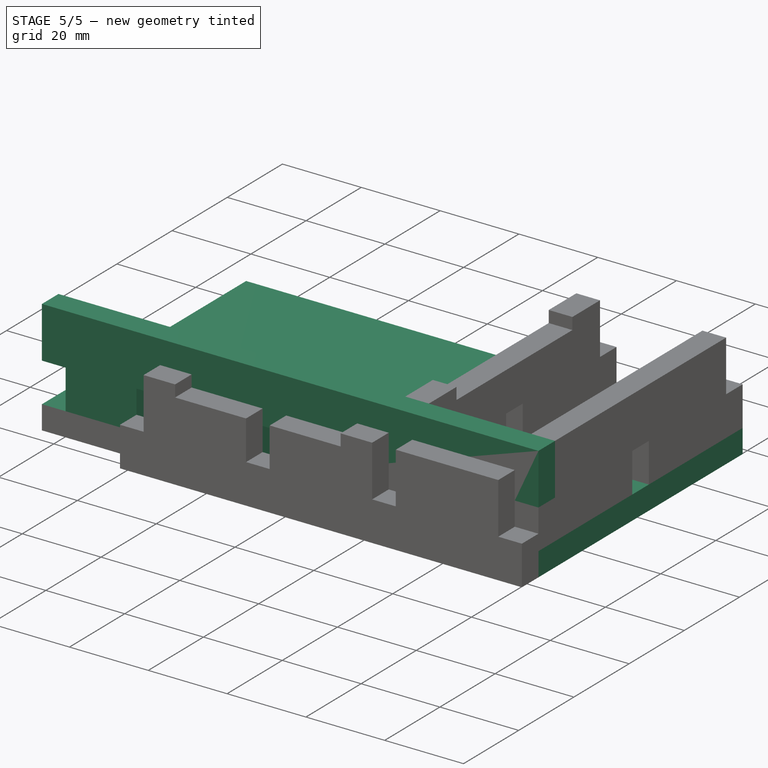
[diagram: stage 5 of 5 — iso view after this stage's code; geometry added in this stage tinted green]
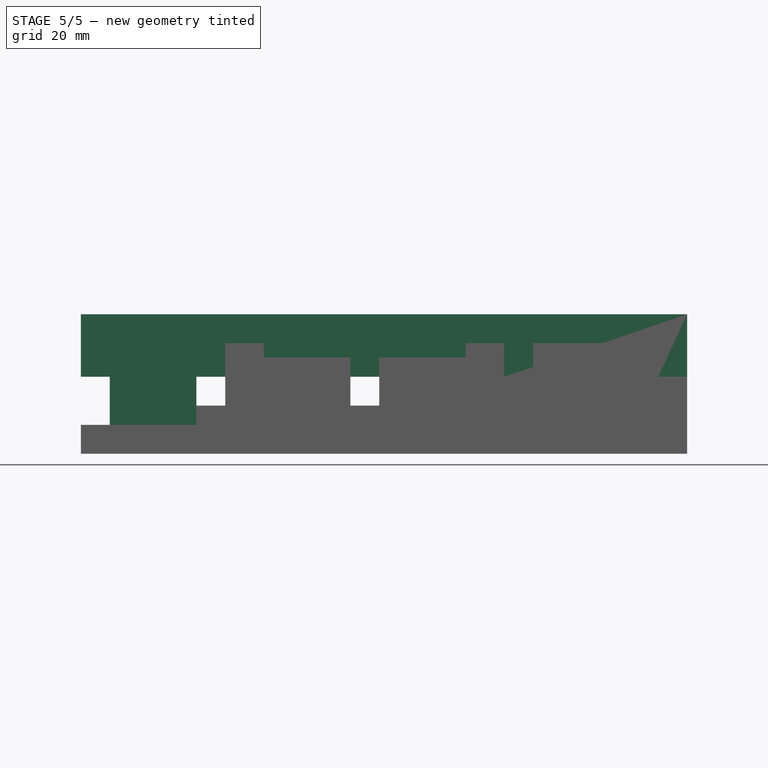
[diagram: stage 5 of 5 — front view after this stage's code; geometry added in this stage tinted green]
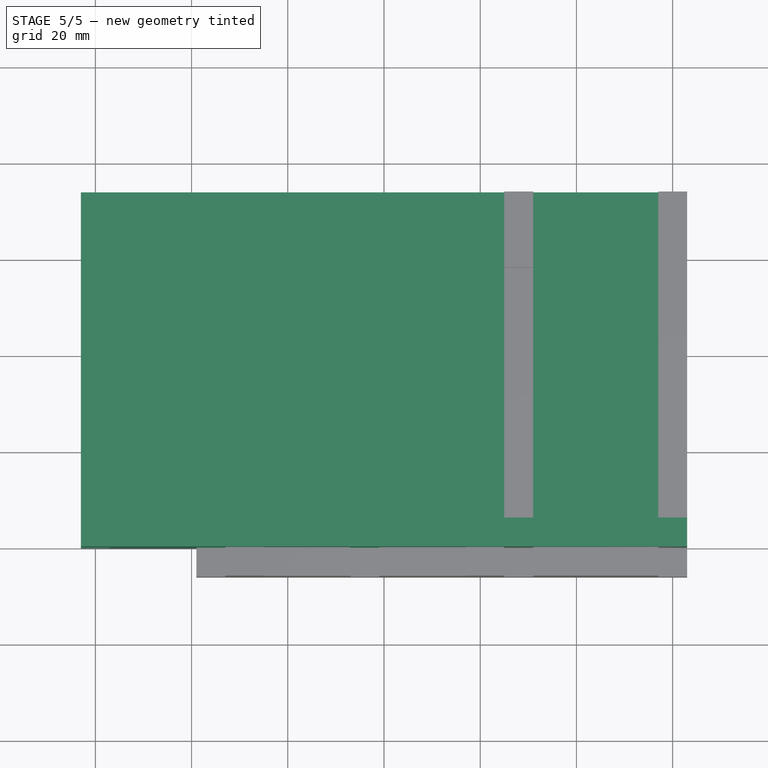
[diagram: stage 5 of 5 — top view after this stage's code; geometry added in this stage tinted green]
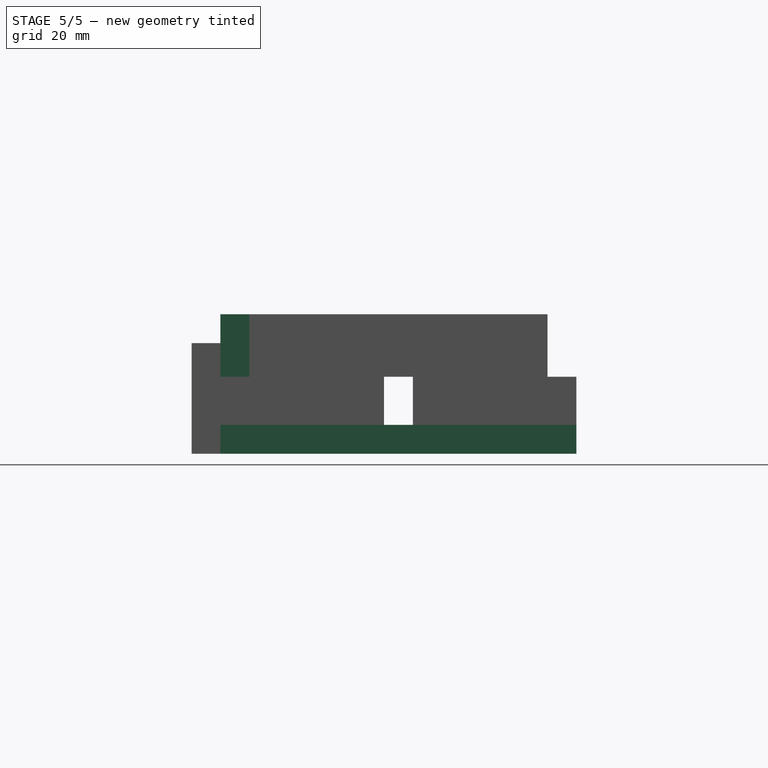
[diagram: stage 5 of 5 — right view after this stage's code; geometry added in this stage tinted green]
FEATURE [Spreadsheet::Sheet] Spreadsheet  label="my_variables"
  cells = A1=foam_width; B1(foam_width)==6mm; A2=lower_height; B2(lower_height)==29mm; A3=upper_height
FEATURE [Sketcher::SketchObject] Sketch
  MapMode = 5
  Support = -> [XY_Plane]
  sketch-geometry (4):
    g0: LineSegment StartX=-63 StartY=0 StartZ=0 EndX=63 EndY=0 EndZ=0
    g1: LineSegment StartX=63 StartY=0 StartZ=0 EndX=63 EndY=74 EndZ=0
    g2: LineSegment StartX=63 StartY=74 StartZ=0 EndX=-63 EndY=74 EndZ=0
    g3: LineSegment StartX=-63 StartY=74 StartZ=0 EndX=-63 EndY=0 EndZ=0
  constraints (11):
    c: Coincident(g0,g1)
    c: Coincident(g1,g2)
    c: Coincident(g2,g3)
    c: Coincident(g3,g0)
    c: Horizontal(g0)
    c: Horizontal(g2)
    c: Vertical(g1)
    c: Vertical(g3)
    c: Distance(g2) = 126
    c: Distance(g1) = 74
    c: Symmetric(g0,g0,g-1)
FEATURE [PartDesign::Pad] Pad
  Length = 6
  Length2 = 100
  Profile = -> Sketch
  Type = 0
  expr: Length = my_variables.foam_width
FEATURE [PartDesign::Body] Body006  label="divider_clone from small side"
  BaseFeature = -> Body003
  Group = -> [Clone002,Sketch005,Pocket002]
  Origin = -> Origin006
  Placement = pos=(120,9.8e-15,7.1e-15) rot=(0,0,1;0rad)
  Tip = -> Pocket002
FEATURE [Sketcher::SketchObject] Sketch006
  MapMode = 5
  Placement = pos=(0,-6,1.3e-15) rot=(1,0,0;1.5708rad)
  Support = -> [Pocket001]
  expr: Constraints[24] = my_variables.foam_width
  expr: Constraints[20] = my_variables.foam_width
  expr: Constraints[18] = my_variables.foam_width
  expr: Constraints[12] = my_variables.foam_width
  expr: Constraints[9] = Sketch001.Constraints[9]
  expr: Constraints[8] = Sketch001.Constraints[8]
  sketch-geometry (23):
    g0: LineSegment [constr] StartX=-63 StartY=23 StartZ=0 EndX=63 EndY=23 EndZ=0
    g1: LineSegment [constr] StartX=63 StartY=23 StartZ=0 EndX=63 EndY=0 EndZ=0
    g2: LineSegment [constr] StartX=63 StartY=0 StartZ=0 EndX=-63 EndY=0 EndZ=0
    g3: LineSegment [constr] StartX=-63 StartY=0 StartZ=0 EndX=-63 EndY=23 EndZ=0
    g4: GeomPoint X=-57 Y=0 Z=0
    g5: GeomPoint X=-39 Y=0 Z=0
    g6: GeomPoint X=-33 Y=0 Z=0
    g7: GeomPoint X=-7 Y=0 Z=0
    g8: GeomPoint X=-1 Y=0 Z=0
    g9: GeomPoint X=25 Y=0 Z=0
    g10: GeomPoint X=31 Y=0 Z=0
    g11: LineSegment StartX=-39 StartY=0 StartZ=0 EndX=-33 EndY=0 EndZ=0
    g12: LineSegment StartX=-33 StartY=0 StartZ=0 EndX=-33 EndY=10 EndZ=0
    g13: LineSegment StartX=-33 StartY=10 StartZ=0 EndX=-39 EndY=10 EndZ=0
    g14: LineSegment StartX=-39 StartY=10 StartZ=0 EndX=-39 EndY=0 EndZ=0
    g15: LineSegment StartX=-7 StartY=0 StartZ=0 EndX=-1 EndY=0 EndZ=0
    g16: LineSegment StartX=-1 StartY=0 StartZ=0 EndX=-1 EndY=10 EndZ=0
    g17: LineSegment StartX=-1 StartY=10 StartZ=0 EndX=-7 EndY=10 EndZ=0
    g18: LineSegment StartX=-7 StartY=10 StartZ=0 EndX=-7 EndY=0 EndZ=0
    g19: LineSegment StartX=25 StartY=0 StartZ=0 EndX=31 EndY=0 EndZ=0
    g20: LineSegment StartX=31 StartY=0 StartZ=0 EndX=31 EndY=10 EndZ=0
    g21: LineSegment StartX=31 StartY=10 StartZ=0 EndX=25 EndY=10 EndZ=0
    g22: LineSegment StartX=25 StartY=10 StartZ=0 EndX=25 EndY=0 EndZ=0
  constraints (55):
    c: Coincident(g0,g1)
    c: Coincident(g1,g2)
    c: Coincident(g2,g3)
    c: Coincident(g3,g0)
    c: Horizontal(g0)
    c: Horizontal(g2)
    c: Vertical(g1)
    c: Vertical(g3)
    c: Distance(g2) = 126
    c: Distance(g3) = 23
    c: Symmetric(g2,g2,g-1)
    c: PointOnObject(g4,g2)
    c: DistanceX(g2,g4) = 6
    c: PointOnObject(g5,g2)
    c: PointOnObject(g6,g2)
    c: PointOnObject(g7,g2)
    c: PointOnObject(g8,g2)
    c: DistanceX(g4,g5) = 18
    c: DistanceX(g5,g6) = 6
    c: DistanceX(g6,g7) = 26
    c: DistanceX(g7,g8) = 6
    c: PointOnObject(g9,g2)
    c: PointOnObject(g10,g2)
    c: DistanceX(g8,g9) = 26
    c: DistanceX(g9,g10) = 6
    c: Coincident(g11,g12)
    c: Coincident(g12,g13)
    c: Coincident(g13,g14)
    c: Coincident(g14,g11)
    c: Horizontal(g13)
    c: Vertical(g12)
    c: Vertical(g14)
    c: Coincident(g11,g5)
    c: Coincident(g15,g16)
    c: Coincident(g16,g17)
    c: Coincident(g17,g18)
    c: Coincident(g18,g15)
    c: Horizontal(g17)
    c: Vertical(g16)
    c: Vertical(g18)
    c: Coincident(g15,g7)
    c: Coincident(g19,g20)
    c: Coincident(g20,g21)
    c: Coincident(g21,g22)
    c: Coincident(g22,g19)
    c: Horizontal(g21)
    c: Vertical(g20)
    c: Vertical(g22)
    c: Coincident(g19,g9)
    c: Coincident(g6,g11)
    c: Coincident(g8,g15)
    c: Coincident(g10,g19)
    c: DistanceY(g14,g14) = 10
    c: DistanceY(g18,g18) = 10
    c: DistanceY(g22,g22) = 10
FEATURE [PartDesign::Pocket] Pocket003
  BaseFeature = -> Pocket001
  Length = 5
  Length2 = 100
  Placement = pos=(0,0,0) rot=(1,0,0;1.5708rad)
  Profile = -> Sketch006
  Type = 1
FEATURE [PartDesign::Body] Body001  label="side_long"
  Group = -> [Sketch001,Pad001,Sketch004,Pocket001,Sketch006,Pocket003]
  Origin = -> Origin001
  Placement = pos=(0,6,6) rot=(0,0,1;0rad)
  Tip = -> Pocket003
FEATURE [PartDesign::FeatureBase] Clone
  BaseFeature = -> Body001
  Placement = pos=(0,6,6) rot=(0,0,1;0rad)
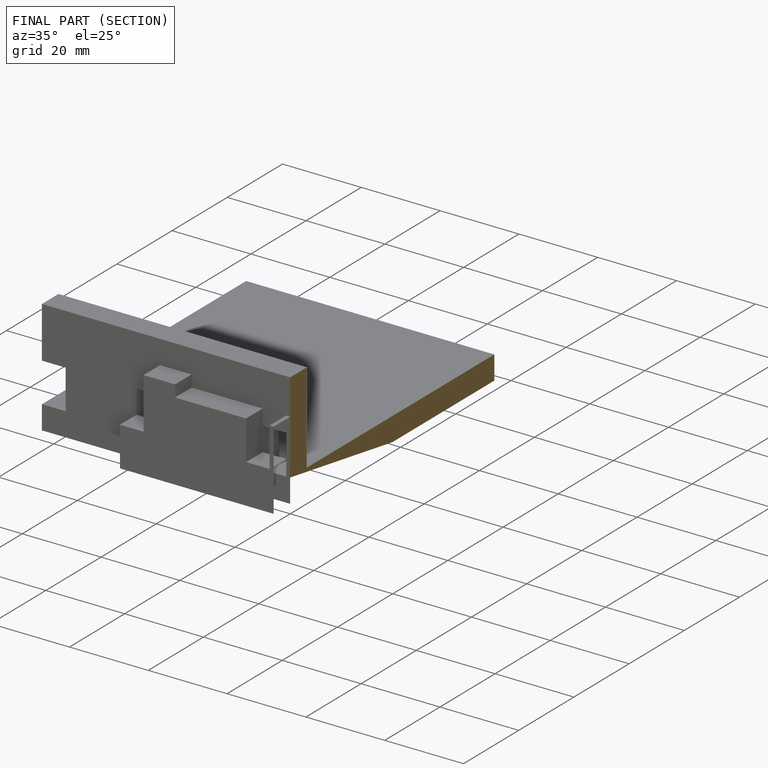
[diagram: finished part — half-section view (interior)]
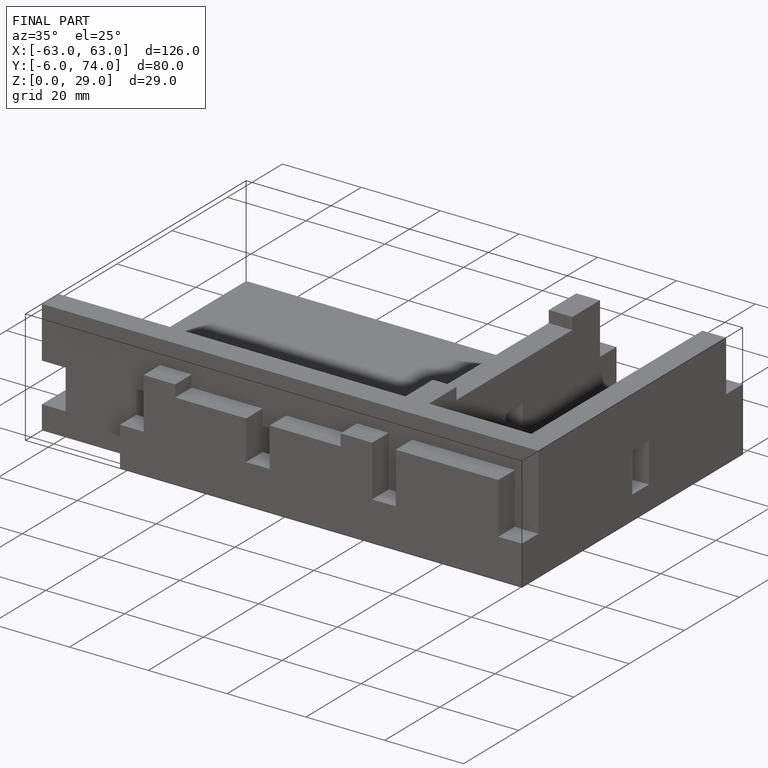
[diagram: finished part — iso view with bounding-box wireframe]
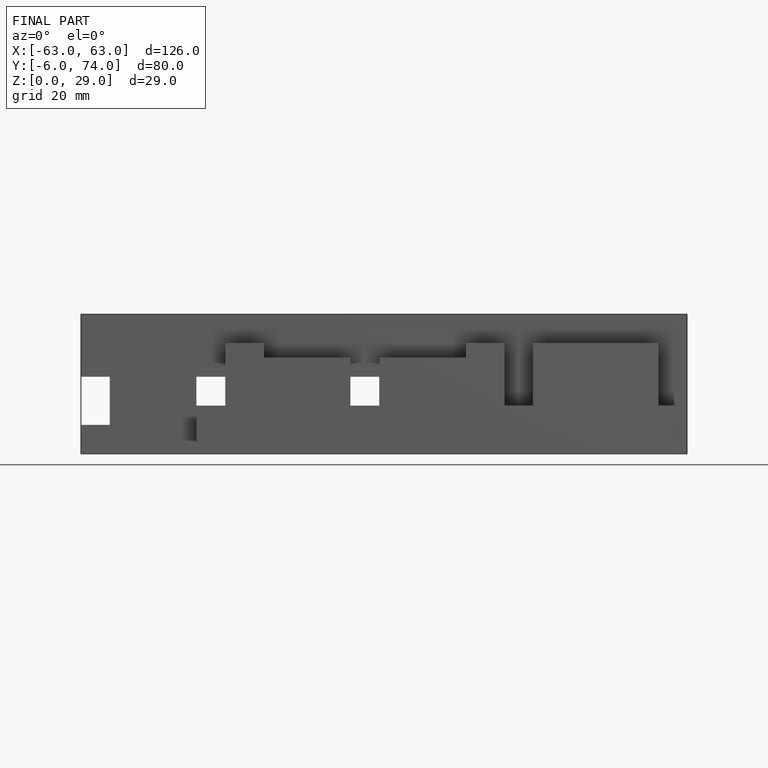
[diagram: finished part — front view with bounding-box wireframe]
